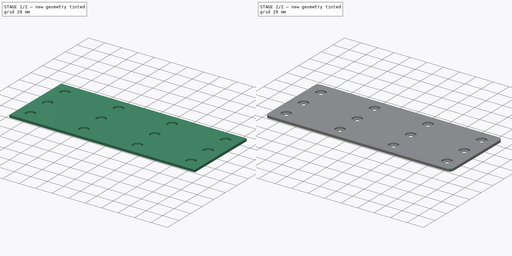
[diagram: build sequence overview — one tinted view per stage of 2, left to right]
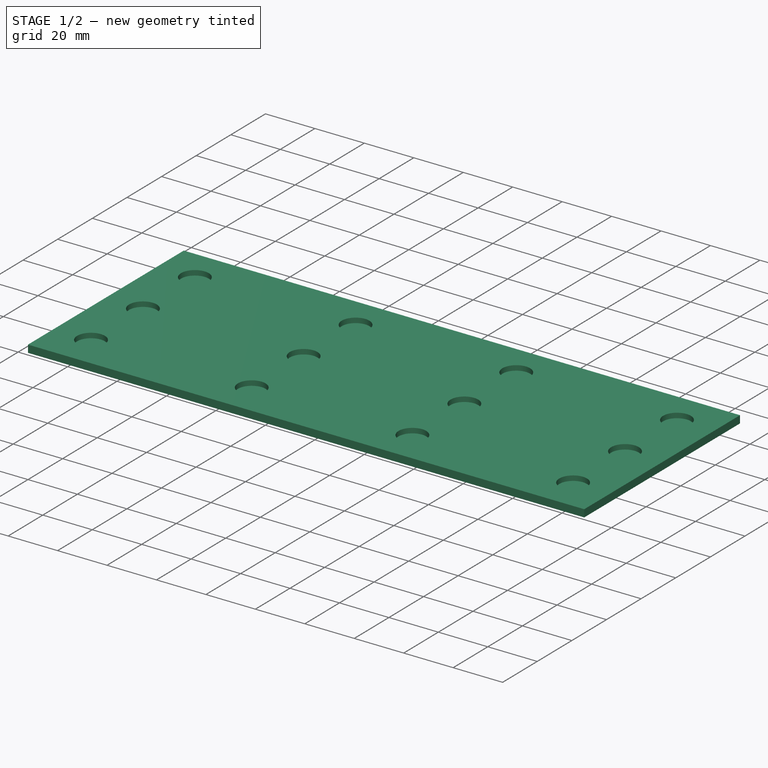
[diagram: stage 1 of 2 — iso view after this stage's code; geometry added in this stage tinted green]
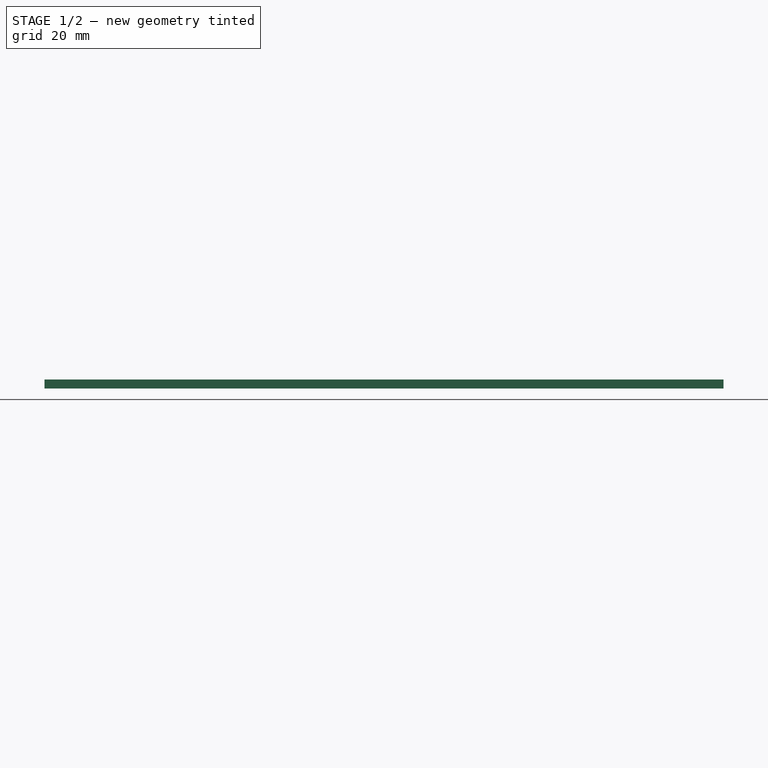
[diagram: stage 1 of 2 — front view after this stage's code; geometry added in this stage tinted green]
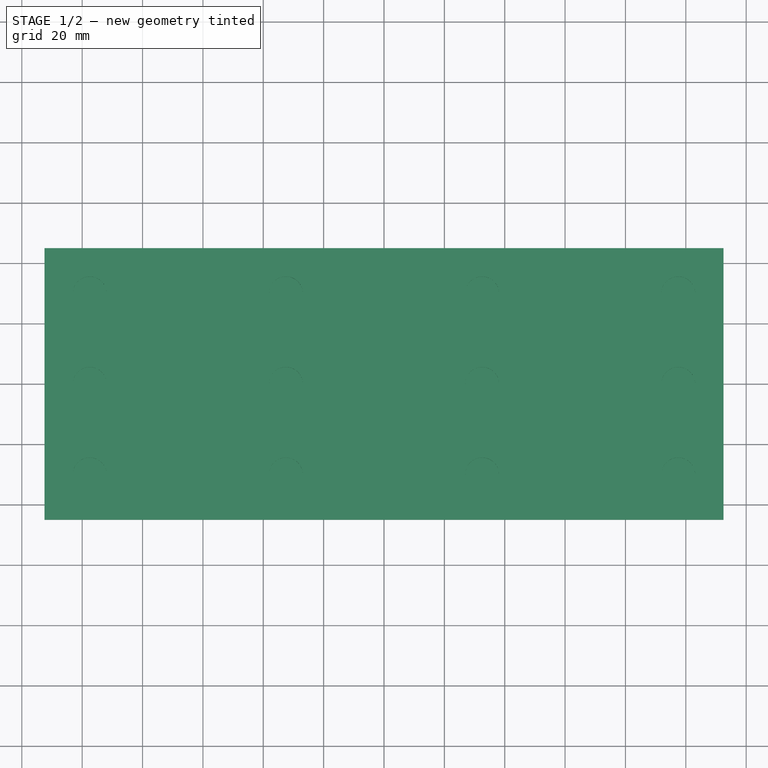
[diagram: stage 1 of 2 — top view after this stage's code; geometry added in this stage tinted green]
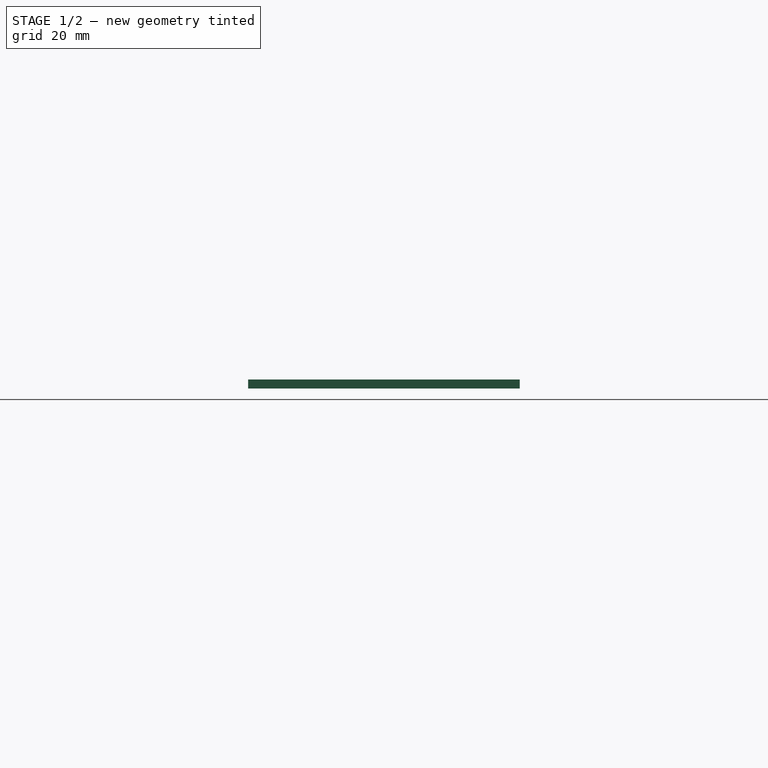
[diagram: stage 1 of 2 — right view after this stage's code; geometry added in this stage tinted green]
FCSTD DOCUMENT  (FreeCAD 0.18R16146 (Git))
Label: actuator-mounting-jig
License: All rights reserved
LicenseURL: http://en.wikipedia.org/wiki/All_rights_reserved
objects: Sketcher::SketchObject×3, PartDesign::Pocket×2, PartDesign::Pad×1, PartDesign::Fillet×1, PartDesign::Body×1
note: 11 computed .brp shape members not serialized (recipe doc carries the construction recipe); baked Part::Feature solids carry a one-line shape summary decoded from their .brp

FEATURE [Sketcher::SketchObject] Sketch
  MapMode = 5
  Support = -> [XY_Plane]
  sketch-geometry (23):
    g0: Circle CenterX=-97.5 CenterY=30 CenterZ=0 NormalX=0 NormalY=0 NormalZ=1 AngleXU=0 Radius=5.6
    g1: Circle CenterX=-32.5 CenterY=30 CenterZ=0 NormalX=0 NormalY=0 NormalZ=1 AngleXU=0 Radius=5.6
    g2: LineSegment [constr] StartX=-97.5 StartY=30 StartZ=0 EndX=-32.5 EndY=30 EndZ=0
    g3: Circle CenterX=32.5 CenterY=30 CenterZ=0 NormalX=0 NormalY=0 NormalZ=1 AngleXU=0 Radius=5.6
    g4: LineSegment [constr] StartX=-32.5 StartY=30 StartZ=0 EndX=32.5 EndY=30 EndZ=0
    g5: Circle CenterX=97.5 CenterY=30 CenterZ=0 NormalX=0 NormalY=0 NormalZ=1 AngleXU=0 Radius=5.6
    g6: LineSegment [constr] StartX=32.5 StartY=30 StartZ=0 EndX=97.5 EndY=30 EndZ=0
    g7: Circle CenterX=-97.5 CenterY=0 CenterZ=0 NormalX=0 NormalY=0 NormalZ=1 AngleXU=0 Radius=5.6
    g8: LineSegment [constr] StartX=-97.5 StartY=30 StartZ=0 EndX=-97.5 EndY=0 EndZ=0
    g9: Circle CenterX=-32.5 CenterY=0 CenterZ=0 NormalX=0 NormalY=0 NormalZ=1 AngleXU=0 Radius=5.6
    g10: LineSegment [constr] StartX=-97.5 StartY=0 StartZ=0 EndX=-32.5 EndY=0 EndZ=0
    g11: Circle CenterX=32.5 CenterY=0 CenterZ=0 NormalX=0 NormalY=0 NormalZ=1 AngleXU=0 Radius=5.6
    g12: LineSegment [constr] StartX=-32.5 StartY=0 StartZ=0 EndX=32.5 EndY=0 EndZ=0
    g13: Circle CenterX=97.5 CenterY=0 CenterZ=0 NormalX=0 NormalY=0 NormalZ=1 AngleXU=0 Radius=5.6
    g14: LineSegment [constr] StartX=32.5 StartY=0 StartZ=0 EndX=97.5 EndY=0 EndZ=0
    g15: Circle CenterX=-97.5 CenterY=-30 CenterZ=0 NormalX=0 NormalY=0 NormalZ=1 AngleXU=0 Radius=5.6
    g16: LineSegment [constr] StartX=-97.5 StartY=0 StartZ=0 EndX=-97.5 EndY=-30 EndZ=0
    g17: Circle CenterX=-32.5 CenterY=-30 CenterZ=0 NormalX=0 NormalY=0 NormalZ=1 AngleXU=0 Radius=5.6
    g18: LineSegment [constr] StartX=-97.5 StartY=-30 StartZ=0 EndX=-32.5 EndY=-30 EndZ=0
    g19: Circle CenterX=32.5 CenterY=-30 CenterZ=0 NormalX=0 NormalY=0 NormalZ=1 AngleXU=0 Radius=5.6
    g20: LineSegment [constr] StartX=-32.5 StartY=-30 StartZ=0 EndX=32.5 EndY=-30 EndZ=0
    g21: Circle CenterX=97.5 CenterY=-30 CenterZ=0 NormalX=0 NormalY=0 NormalZ=1 AngleXU=0 Radius=5.6
    g22: LineSegment [constr] StartX=32.5 StartY=-30 StartZ=0 EndX=97.5 EndY=-30 EndZ=0
  constraints (57):
    c: Coincident(g0,g2)
    c: Coincident(g1,g2)
    c: Coincident(g1,g4)
    c: Coincident(g3,g4)
    c: Equal(g2,g4)
    c: Parallel(g4,g2)
    c: Coincident(g3,g6)
    c: Coincident(g5,g6)
    c: Equal(g2,g6)
    c: Parallel(g6,g2)
    c: Coincident(g0,g8)
    c: Coincident(g7,g8)
    c: Perpendicular(g8,g2)
    c: Coincident(g7,g10)
    c: Coincident(g9,g10)
    c: Equal(g2,g10)
    c: Parallel(g10,g2)
    c: Coincident(g9,g12)
    c: Coincident(g11,g12)
    c: Equal(g2,g12)
    c: Parallel(g12,g2)
    c: Coincident(g11,g14)
    c: Coincident(g13,g14)
    c: Equal(g2,g14)
    c: Parallel(g14,g2)
    c: Coincident(g7,g16)
    c: Coincident(g15,g16)
    c: Equal(g8,g16)
    c: Perpendicular(g16,g2)
    c: Coincident(g15,g18)
    c: Coincident(g17,g18)
    c: Equal(g2,g18)
    c: Parallel(g18,g2)
    c: Coincident(g17,g20)
    c: Coincident(g19,g20)
    c: Equal(g2,g20)
    c: Parallel(g20,g2)
    c: Coincident(g19,g22)
    c: Coincident(g21,g22)
    c: Equal(g2,g22)
    c: Parallel(g22,g2)
    c: Symmetric(g0,g5,g-2)
    c: PointOnObject(g7,g-1)
    c: Radius(g0) = 5.6
    c: Equal(g0,g1)
    c: Equal(g1,g3)
    c: Equal(g3,g5)
    c: Equal(g5,g7)
    c: Equal(g7,g9)
    c: Equal(g9,g11)
    c: Equal(g11,g13)
    c: Equal(g13,g15)
    c: Equal(g15,g17)
    c: Equal(g17,g19)
    c: Equal(g19,g21)
    c: Distance(g2) = 65
    c: DistanceY(g8,g8) = 30
FEATURE [Sketcher::SketchObject] Sketch001
  MapMode = 5
  Support = -> [XY_Plane]
  sketch-geometry (4):
    g0: LineSegment StartX=-112.5 StartY=45 StartZ=0 EndX=112.5 EndY=45 EndZ=0
    g1: LineSegment StartX=112.5 StartY=45 StartZ=0 EndX=112.5 EndY=-45 EndZ=0
    g2: LineSegment StartX=112.5 StartY=-45 StartZ=0 EndX=-112.5 EndY=-45 EndZ=0
    g3: LineSegment StartX=-112.5 StartY=-45 StartZ=0 EndX=-112.5 EndY=45 EndZ=0
  constraints (10):
    c: Coincident(g0,g1)
    c: Coincident(g1,g2)
    c: Coincident(g2,g3)
    c: Coincident(g3,g0)
    c: Horizontal(g2)
    c: Vertical(g1)
    c: Symmetric(g0,g0,g-2)
    c: Symmetric(g0,g2,g-1)
    c: Distance(g1) = 90
    c: Distance(g0) = 225
FEATURE [PartDesign::Pad] Pad
  Length = 2
  Length2 = 1
  Profile = -> Sketch001
  Type = 4
FEATURE [PartDesign::Pocket] Pocket
  BaseFeature = -> Pad
  Length = 5
  Length2 = 100
  Profile = -> Sketch
  Reversed = true
  Type = 1
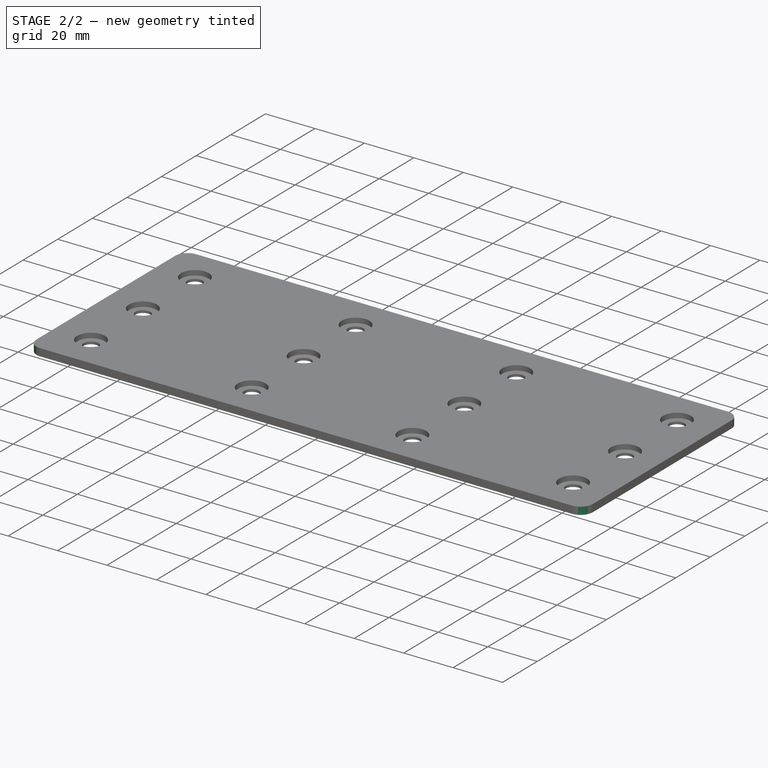
[diagram: stage 2 of 2 — iso view after this stage's code; geometry added in this stage tinted green]
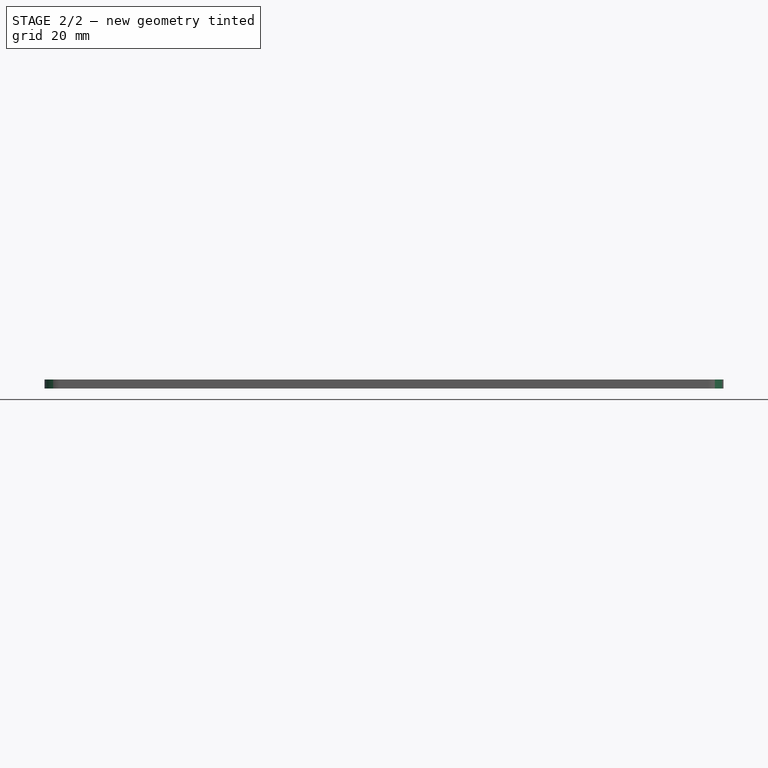
[diagram: stage 2 of 2 — front view after this stage's code; geometry added in this stage tinted green]
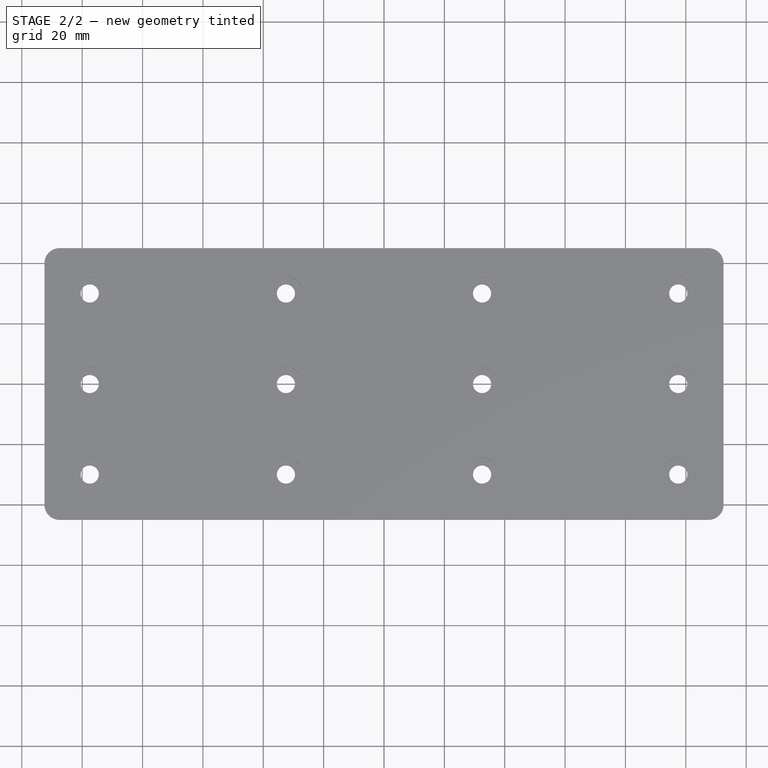
[diagram: stage 2 of 2 — top view after this stage's code; geometry added in this stage tinted green]
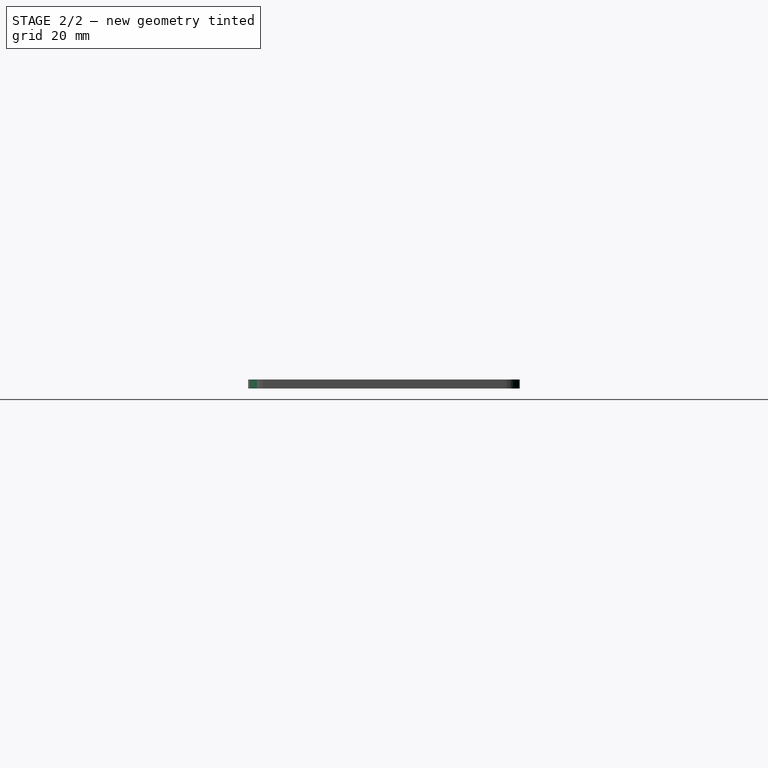
[diagram: stage 2 of 2 — right view after this stage's code; geometry added in this stage tinted green]
FEATURE [Sketcher::SketchObject] Sketch004
  ExternalGeometry = -> [Pocket]
  MapMode = 5
  Support = -> [XY_Plane]
  sketch-geometry (23):
    g0: Circle CenterX=-97.5 CenterY=30 CenterZ=0 NormalX=0 NormalY=0 NormalZ=1 AngleXU=0 Radius=3
    g1: Circle CenterX=-32.5 CenterY=30 CenterZ=0 NormalX=0 NormalY=0 NormalZ=1 AngleXU=0 Radius=3
    g2: LineSegment [constr] StartX=-97.5 StartY=30 StartZ=0 EndX=-32.5 EndY=30 EndZ=0
    g3: Circle CenterX=32.5 CenterY=30 CenterZ=0 NormalX=0 NormalY=0 NormalZ=1 AngleXU=0 Radius=3
    g4: LineSegment [constr] StartX=-32.5 StartY=30 StartZ=0 EndX=32.5 EndY=30 EndZ=0
    g5: Circle CenterX=97.5 CenterY=30 CenterZ=0 NormalX=0 NormalY=0 NormalZ=1 AngleXU=0 Radius=3
    g6: LineSegment [constr] StartX=32.5 StartY=30 StartZ=0 EndX=97.5 EndY=30 EndZ=0
    g7: Circle CenterX=-97.5 CenterY=0 CenterZ=0 NormalX=0 NormalY=0 NormalZ=1 AngleXU=0 Radius=3
    g8: LineSegment [constr] StartX=-97.5 StartY=30 StartZ=0 EndX=-97.5 EndY=0 EndZ=0
    g9: Circle CenterX=-32.5 CenterY=1.7e-15 CenterZ=0 NormalX=0 NormalY=0 NormalZ=1 AngleXU=0 Radius=3
    g10: LineSegment [constr] StartX=-97.5 StartY=0 StartZ=0 EndX=-32.5 EndY=1.7e-15 EndZ=0
    g11: Circle CenterX=32.5 CenterY=1.7e-15 CenterZ=0 NormalX=0 NormalY=0 NormalZ=1 AngleXU=0 Radius=3
    g12: LineSegment [constr] StartX=-32.5 StartY=1.7e-15 StartZ=0 EndX=32.5 EndY=1.7e-15 EndZ=0
    g13: Circle CenterX=97.5 CenterY=1.7e-15 CenterZ=0 NormalX=0 NormalY=0 NormalZ=1 AngleXU=0 Radius=3
    g14: LineSegment [constr] StartX=32.5 StartY=1.7e-15 StartZ=0 EndX=97.5 EndY=1.7e-15 EndZ=0
    g15: Circle CenterX=-97.5 CenterY=-30 CenterZ=0 NormalX=0 NormalY=0 NormalZ=1 AngleXU=0 Radius=3
    g16: LineSegment [constr] StartX=-97.5 StartY=0 StartZ=0 EndX=-97.5 EndY=-30 EndZ=0
    g17: Circle CenterX=-32.5 CenterY=-30 CenterZ=0 NormalX=0 NormalY=0 NormalZ=1 AngleXU=0 Radius=3
    g18: LineSegment [constr] StartX=-97.5 StartY=-30 StartZ=0 EndX=-32.5 EndY=-30 EndZ=0
    g19: Circle CenterX=32.5 CenterY=-30 CenterZ=0 NormalX=0 NormalY=0 NormalZ=1 AngleXU=0 Radius=3
    g20: LineSegment [constr] StartX=-32.5 StartY=-30 StartZ=0 EndX=32.5 EndY=-30 EndZ=0
    g21: Circle CenterX=97.5 CenterY=-30 CenterZ=0 NormalX=0 NormalY=0 NormalZ=1 AngleXU=0 Radius=3
    g22: LineSegment [constr] StartX=32.5 StartY=-30 StartZ=0 EndX=97.5 EndY=-30 EndZ=0
  constraints (56):
    c: Coincident(g0,g-3)
    c: Radius(g0) = 3
    c: Equal(g0,g1) = 3
    c: Coincident(g0,g2)
    c: Coincident(g1,g2)
    c: Equal(g0,g3) = 3
    c: Coincident(g1,g4)
    c: Coincident(g3,g4)
    c: Equal(g2,g4)
    c: Parallel(g4,g2)
    c: Equal(g0,g5) = 3
    c: Coincident(g3,g6)
    c: Coincident(g5,g6)
    c: Equal(g2,g6)
    c: Parallel(g6,g2)
    c: Equal(g0,g7) = 3
    c: Coincident(g0,g8)
    c: Coincident(g7,g8)
    c: Perpendicular(g8,g2)
    c: Equal(g0,g9) = 3
    c: Coincident(g7,g10)
    c: Coincident(g9,g10)
    c: Equal(g2,g10)
    c: Parallel(g10,g2)
    c: Equal(g0,g11) = 3
    c: Coincident(g9,g12)
    c: Coincident(g11,g12)
    c: Equal(g2,g12)
    c: Parallel(g12,g2)
    c: Equal(g0,g13) = 3
    c: Coincident(g11,g14)
    c: Coincident(g13,g14)
    c: Equal(g2,g14)
    c: Parallel(g14,g2)
    c: Equal(g0,g15) = 3
    c: Coincident(g7,g16)
    c: Coincident(g15,g16)
    c: Equal(g8,g16)
    c: Perpendicular(g16,g2)
    c: Equal(g0,g17) = 3
    c: Coincident(g15,g18)
    c: Coincident(g17,g18)
    c: Equal(g2,g18)
    c: Parallel(g18,g2)
    c: Equal(g0,g19) = 3
    c: Coincident(g17,g20)
    c: Coincident(g19,g20)
    c: Equal(g2,g20)
    c: Parallel(g20,g2)
    c: Equal(g0,g21) = 3
    c: Coincident(g19,g22)
    c: Coincident(g21,g22)
    c: Equal(g2,g22)
    c: Parallel(g22,g2)
    c: Vertical(g16)
    c: Coincident(g-4,g21)
FEATURE [PartDesign::Pocket] Pocket001
  BaseFeature = -> Pocket
  Length = 5
  Length2 = 100
  Profile = -> Sketch004
  Type = 1
FEATURE [PartDesign::Fillet] Fillet
  Base = -> Pocket001 [Edge5,Edge1,Edge8,Edge2]
  BaseFeature = -> Pocket001
  Radius = 5
FEATURE [PartDesign::Body] Body  label="Jig"
  Group = -> [Sketch,Sketch001,Pad,Pocket,Sketch004,Pocket001,Fillet]
  Origin = -> Origin
  Tip = -> Fillet
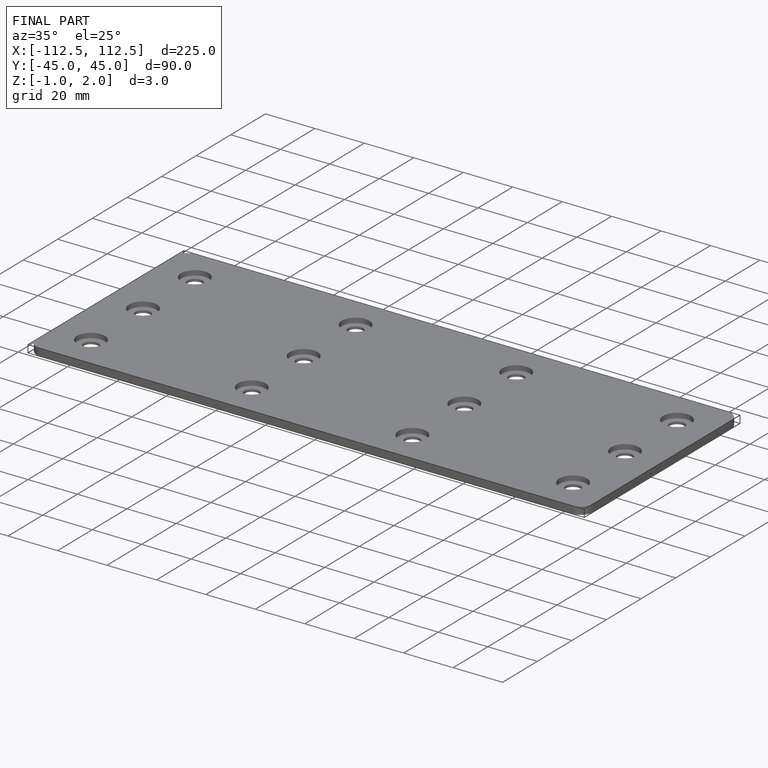
[diagram: finished part — iso view with bounding-box wireframe]
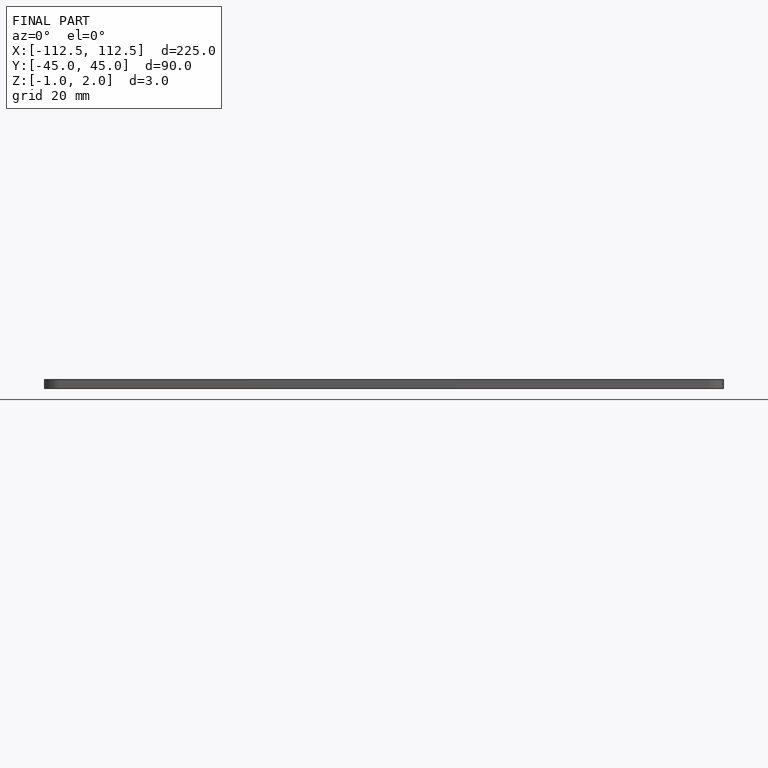
[diagram: finished part — front view with bounding-box wireframe]
